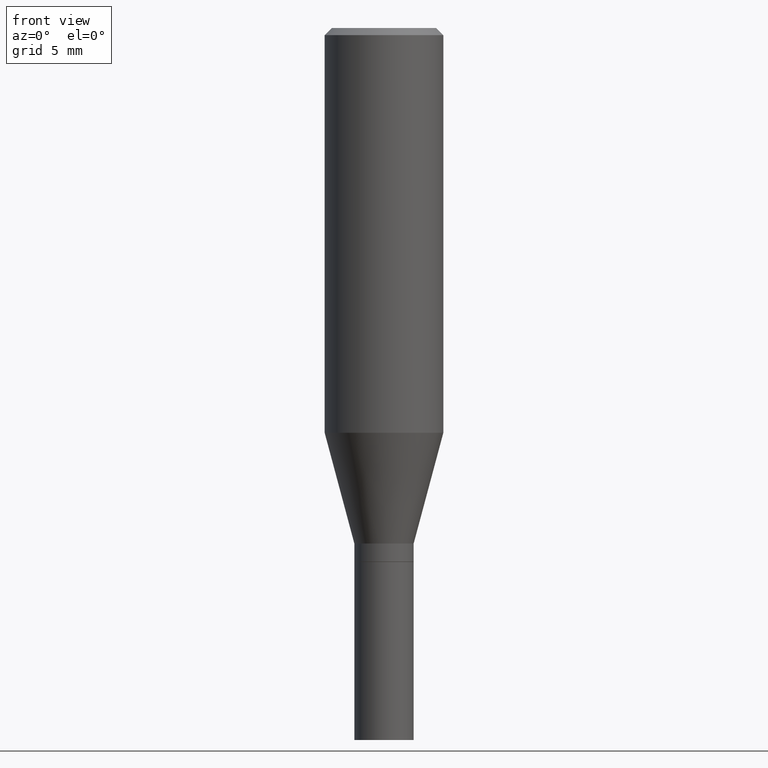
[diagram: clean part render]
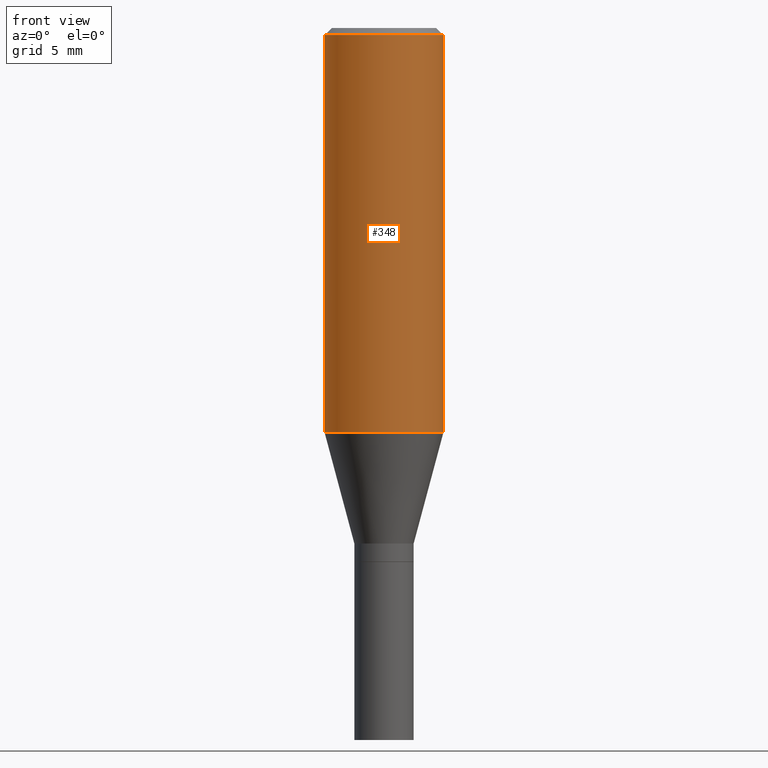
[diagram: same view with one face highlighted and labeled with its STEP entity id]
A machine part, front view. The second image highlights one B-rep face of the part: STEP entity #348.
In plain terms, the highlighted cylindrical surface (partial cylindrical patch) has radius 3.175 mm, axis along (-0, 0, 1).
Its self-contained STEP definition (entity closure, byte-faithful):
#2 = EDGE_LOOP ( 'NONE', ( #282, #218, #55, #86 ) ) ;
#3 = DIRECTION ( 'NONE',  ( 1.000000000000000000, -6.982962677686266711E-15, 0.000000000000000000 ) ) ;
#9 = DIRECTION ( 'NONE',  ( -2.445468806185136597E-29, 3.491481338843145583E-15, 1.000000000000000000 ) ) ;
#33 = CARTESIAN_POINT ( 'NONE',  ( 0.1250000000000000000, -9.252425547934304180E-16, -0.01499999999999999944 ) ) ;
#48 = FACE_OUTER_BOUND ( 'NONE', #2, .T. ) ;
#51 = CARTESIAN_POINT ( 'NONE',  ( 0.1250000000000000000, -3.850219959304363208E-15, -0.8527468245269455016 ) ) ;
#55 = ORIENTED_EDGE ( 'NONE', *, *, #84, .T. ) ;
#84 = EDGE_CURVE ( 'NONE', #432, #91, #396, .T. ) ;
#86 = ORIENTED_EDGE ( 'NONE', *, *, #350, .F. ) ;
#88 = DIRECTION ( 'NONE',  ( -2.445468806185136597E-29, 3.491481338843145583E-15, 1.000000000000000000 ) ) ;
#91 = VERTEX_POINT ( 'NONE', #33 ) ;
#124 = CARTESIAN_POINT ( 'NONE',  ( 3.668203209277705088E-31, -5.237222008264718399E-17, -0.01499999999999999944 ) ) ;
#153 = CARTESIAN_POINT ( 'NONE',  ( 0.000000000000000000, 0.000000000000000000, 0.000000000000000000 ) ) ;
#164 = DIRECTION ( 'NONE',  ( -2.445468806185136877E-29, 3.491481338843145188E-15, 1.000000000000000000 ) ) ;
#166 = VECTOR ( 'NONE', #164, 39.37007874015748143 ) ;
#170 = EDGE_CURVE ( 'NONE', #331, #371, #285, .T. ) ;
#181 = CARTESIAN_POINT ( 'NONE',  ( -0.1250000000000000000, -6.266825026379885376E-16, -0.01499999999999999944 ) ) ;
#192 = CARTESIAN_POINT ( 'NONE',  ( 2.085365758954075532E-29, -2.977349624593580658E-15, -0.8527468245269455016 ) ) ;
#194 = VECTOR ( 'NONE', #245, 39.37007874015748143 ) ;
#218 = ORIENTED_EDGE ( 'NONE', *, *, #461, .T. ) ;
#221 = CARTESIAN_POINT ( 'NONE',  ( -0.1250000000000000000, 8.881784197001252323E-16, -6.148668862818632227E-30 ) ) ;
#239 = AXIS2_PLACEMENT_3D ( 'NONE', #153, #9, #295 ) ;
#245 = DIRECTION ( 'NONE',  ( -2.445468806185136877E-29, 3.491481338843145188E-15, 1.000000000000000000 ) ) ;
#282 = ORIENTED_EDGE ( 'NONE', *, *, #170, .F. ) ;
#285 = LINE ( 'NONE', #221, #166 ) ;
#295 = DIRECTION ( 'NONE',  ( 1.000000000000000000, -6.982962677686266711E-15, 4.876176775795935793E-29 ) ) ;
#297 = AXIS2_PLACEMENT_3D ( 'NONE', #124, #326, #3 ) ;
#316 = CARTESIAN_POINT ( 'NONE',  ( 0.1250000000000000000, -8.728703347107833388E-16, 6.095220969744919741E-30 ) ) ;
#326 = DIRECTION ( 'NONE',  ( -2.445468806185136597E-29, 3.491481338843145583E-15, 1.000000000000000000 ) ) ;
#328 = CIRCLE ( 'NONE', #297, 0.1250000000000000000 ) ;
#331 = VERTEX_POINT ( 'NONE', #427 ) ;
#334 = CYLINDRICAL_SURFACE ( 'NONE', #239, 0.1250000000000000000 ) ;
#348 = ADVANCED_FACE ( 'NONE', ( #48 ), #334, .T. ) ;
#350 = EDGE_CURVE ( 'NONE', #371, #91, #328, .T. ) ;
#371 = VERTEX_POINT ( 'NONE', #181 ) ;
#383 = DIRECTION ( 'NONE',  ( 1.000000000000000000, -6.982962677686266711E-15, 0.000000000000000000 ) ) ;
#396 = LINE ( 'NONE', #316, #194 ) ;
#427 = CARTESIAN_POINT ( 'NONE',  ( -0.1250000000000000000, -2.089171204893455031E-15, -0.8527468245269455016 ) ) ;
#431 = AXIS2_PLACEMENT_3D ( 'NONE', #192, #88, #383 ) ;
#432 = VERTEX_POINT ( 'NONE', #51 ) ;
#440 = CIRCLE ( 'NONE', #431, 0.1250000000000000000 ) ;
#461 = EDGE_CURVE ( 'NONE', #331, #432, #440, .T. ) ;